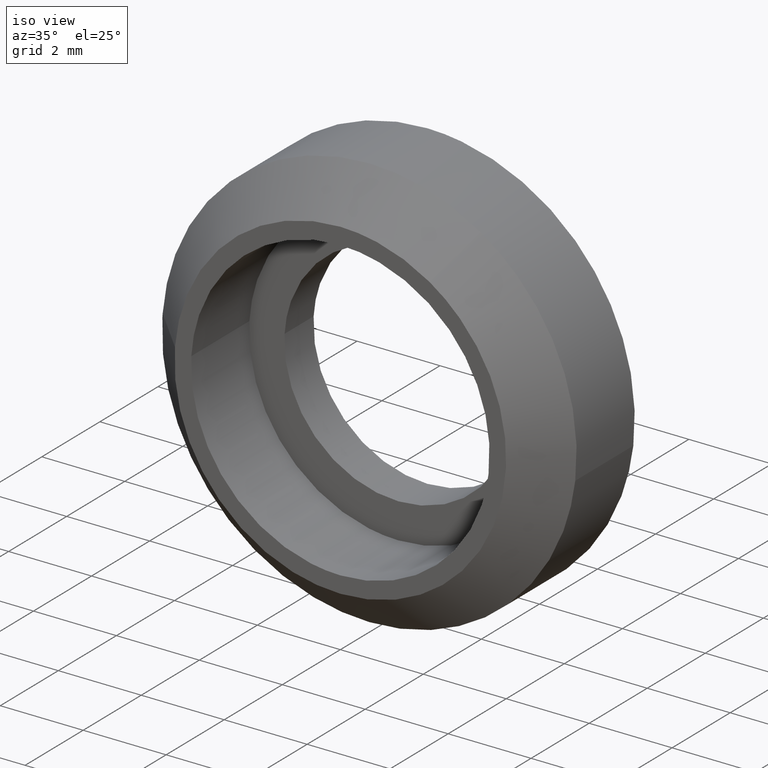
[diagram: clean part render]
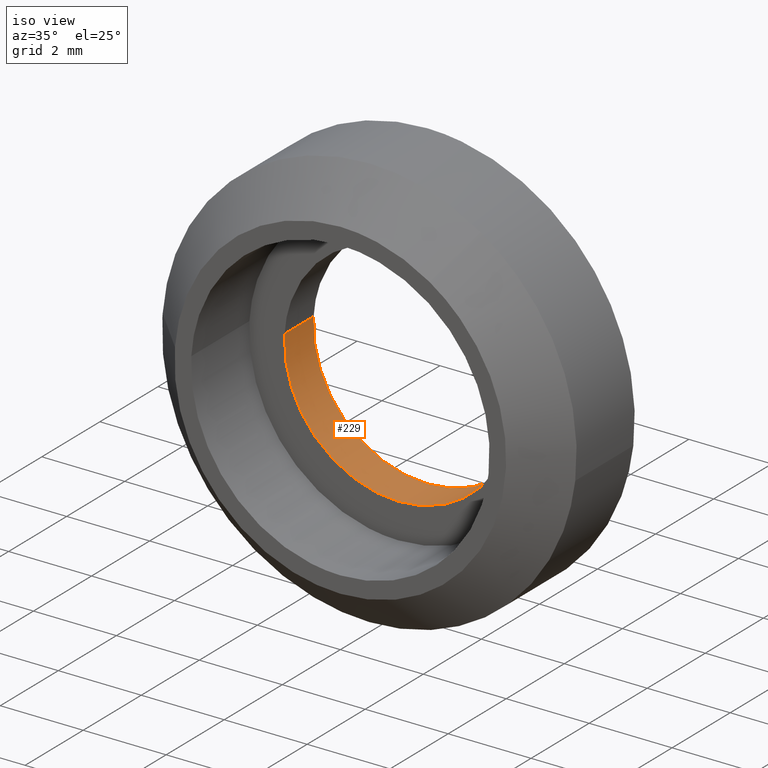
[diagram: same view with one face highlighted and labeled with its STEP entity id]
A machine part, iso view. The second image highlights one B-rep face of the part: STEP entity #229.
In plain terms, the highlighted face is a freeform B-spline surface patch.
Its self-contained STEP definition (entity closure, byte-faithful):
#66=CARTESIAN_POINT('',(2.730776418423933,1.000000000000025,-0.324592286686328));
#67=VERTEX_POINT('',#66);
#85=CARTESIAN_POINT('',(2.730776415759834,5.323928E-018,-0.324592309099363));
#86=VERTEX_POINT('',#85);
#87=CARTESIAN_POINT('',(2.730776418423933,1.000000000000025,-0.324592286686328));
#88=CARTESIAN_POINT('',(2.730776415759834,5.323928E-018,-0.324592309099363));
#89=QUASI_UNIFORM_CURVE('',1,(#87,#88),.UNSPECIFIED.,.F.,.U.);
#90=EDGE_CURVE('',#67,#86,#89,.T.);
#109=CARTESIAN_POINT('',(-2.744870870186102,-5.204170E-017,0.167880630197805));
#110=VERTEX_POINT('',#109);
#124=CARTESIAN_POINT('',(-2.744870872313038,0.999999999999963,0.167880595421523));
#125=VERTEX_POINT('',#124);
#126=CARTESIAN_POINT('',(-2.744870872313038,0.999999999999963,0.167880595421523));
#127=CARTESIAN_POINT('',(-2.744870870186102,-5.204170E-017,0.167880630197805));
#128=QUASI_UNIFORM_CURVE('',1,(#126,#127),.UNSPECIFIED.,.F.,.U.);
#129=EDGE_CURVE('',#125,#110,#128,.T.);
#147=CARTESIAN_POINT('',(-2.744870695660133,1.025000000000000,0.167883483720857));
#148=CARTESIAN_POINT('',(-2.912754179380989,1.025000000000000,-2.576987211939278));
#149=CARTESIAN_POINT('',(-0.167883483720856,1.025000000000000,-2.744870695660134));
#150=CARTESIAN_POINT('',(2.424244599808629,1.025000000000000,-2.903412041014450));
#151=CARTESIAN_POINT('',(2.730776197500084,1.025000000000000,-0.324594145306086));
#152=CARTESIAN_POINT('',(-2.744870695660133,-0.025625000000000,0.167883483720857));
#153=CARTESIAN_POINT('',(-2.912754179380989,-0.025625000000000,-2.576987211939278));
#154=CARTESIAN_POINT('',(-0.167883483720856,-0.025625000000000,-2.744870695660134));
#155=CARTESIAN_POINT('',(2.424244599808629,-0.025625000000000,-2.903412041014450));
#156=CARTESIAN_POINT('',(2.730776197500084,-0.025625000000000,-0.324594145306086));
#164=(BOUNDED_SURFACE()B_SPLINE_SURFACE(2,1,((#147,#152),(#148,#153),(#149,#154),(#150,#155),(#151,#156)),.UNSPECIFIED.,.F.,.F.,.U.)B_SPLINE_SURFACE_WITH_KNOTS((3,2,3),(2,2),(0.0,4.556349186104045,8.930444404763927),(0.0,1.0),.UNSPECIFIED.)GEOMETRIC_REPRESENTATION_ITEM()RATIONAL_B_SPLINE_SURFACE(((1.0,1.0),(0.707106781186548,0.707106781186548),(1.0,1.0),(0.718822509939086,0.718822509939086),(0.977505800795127,0.977505800795127)))REPRESENTATION_ITEM('')SURFACE());
#165=CARTESIAN_POINT('',(4.898425E-016,1.0,-2.750000000000000));
#166=VERTEX_POINT('',#165);
#167=CARTESIAN_POINT('',(4.898425E-016,1.0,-2.750000000000000));
#168=CARTESIAN_POINT('',(2.442481620469085,1.0,-2.750000000000000));
#169=CARTESIAN_POINT('',(2.730776418423933,1.000000000000025,-0.324592286686328));
#177=(BOUNDED_CURVE()B_SPLINE_CURVE(2,(#167,#168,#169),.UNSPECIFIED.,.F.,.U.)B_SPLINE_CURVE_WITH_KNOTS((3,3),(0.0,0.229562588542570),.UNSPECIFIED.)CURVE()GEOMETRIC_REPRESENTATION_ITEM()RATIONAL_B_SPLINE_CURVE((1.0,0.731050698090474,0.956026979645492))REPRESENTATION_ITEM(''));
#178=EDGE_CURVE('',#166,#67,#177,.T.);
#179=ORIENTED_EDGE('',*,*,#178,.F.);
#180=CARTESIAN_POINT('',(-2.744870872313038,0.999999999999963,0.167880595421523));
#181=CARTESIAN_POINT('',(-2.750000000000000,1.0,0.084018650872314));
#182=CARTESIAN_POINT('',(-2.750000000000000,1.0,0.0));
#183=CARTESIAN_POINT('',(-2.749999999999999,1.0,-2.750000000000000));
#184=CARTESIAN_POINT('',(4.898425E-016,1.0,-2.750000000000000));
#192=(BOUNDED_CURVE()B_SPLINE_CURVE(2,(#180,#181,#182,#183,#184),.UNSPECIFIED.,.F.,.U.)B_SPLINE_CURVE_WITH_KNOTS((3,2,3),(0.739333143804927,0.750000000000000,1.0),.UNSPECIFIED.)CURVE()GEOMETRIC_REPRESENTATION_ITEM()RATIONAL_B_SPLINE_CURVE((0.976072430797494,0.987503000617620,1.0,0.707106781186548,1.0))REPRESENTATION_ITEM(''));
#193=EDGE_CURVE('',#125,#166,#192,.T.);
#194=ORIENTED_EDGE('',*,*,#193,.F.);
#195=ORIENTED_EDGE('',*,*,#129,.T.);
#196=CARTESIAN_POINT('',(4.898425E-016,0.0,-2.750000000000000));
#197=VERTEX_POINT('',#196);
#198=CARTESIAN_POINT('',(-2.744870870186103,-5.204170E-017,0.167880630197805));
#199=CARTESIAN_POINT('',(-2.749999999999999,0.0,0.084018668309206));
#200=CARTESIAN_POINT('',(-2.750000000000000,0.0,0.0));
#201=CARTESIAN_POINT('',(-2.749999999999999,0.0,-2.750000000000000));
#202=CARTESIAN_POINT('',(4.898425E-016,0.0,-2.750000000000000));
#210=(BOUNDED_CURVE()B_SPLINE_CURVE(2,(#198,#199,#200,#201,#202),.UNSPECIFIED.,.F.,.U.)B_SPLINE_CURVE_WITH_KNOTS((3,2,3),(0.739333141618836,0.750000000000000,1.0),.UNSPECIFIED.)CURVE()GEOMETRIC_REPRESENTATION_ITEM()RATIONAL_B_SPLINE_CURVE((0.976072426112277,0.987502998056455,1.0,0.707106781186548,1.0))REPRESENTATION_ITEM(''));
#211=EDGE_CURVE('',#110,#197,#210,.T.);
#212=ORIENTED_EDGE('',*,*,#211,.T.);
#213=CARTESIAN_POINT('',(4.898425E-016,0.0,-2.750000000000000));
#214=CARTESIAN_POINT('',(2.442481600281129,0.0,-2.750000000000000));
#215=CARTESIAN_POINT('',(2.730776415759835,5.323928E-018,-0.324592309099363));
#223=(BOUNDED_CURVE()B_SPLINE_CURVE(2,(#213,#214,#215),.UNSPECIFIED.,.F.,.U.)B_SPLINE_CURVE_WITH_KNOTS((3,3),(0.0,0.229562587155464),.UNSPECIFIED.)CURVE()GEOMETRIC_REPRESENTATION_ITEM()RATIONAL_B_SPLINE_CURVE((1.0,0.731050699715569,0.956026976926705))REPRESENTATION_ITEM(''));
#224=EDGE_CURVE('',#197,#86,#223,.T.);
#225=ORIENTED_EDGE('',*,*,#224,.T.);
#226=ORIENTED_EDGE('',*,*,#90,.F.);
#227=EDGE_LOOP('',(#179,#194,#195,#212,#225,#226));
#228=FACE_OUTER_BOUND('',#227,.T.);
#229=ADVANCED_FACE('',(#228),#164,.F.);